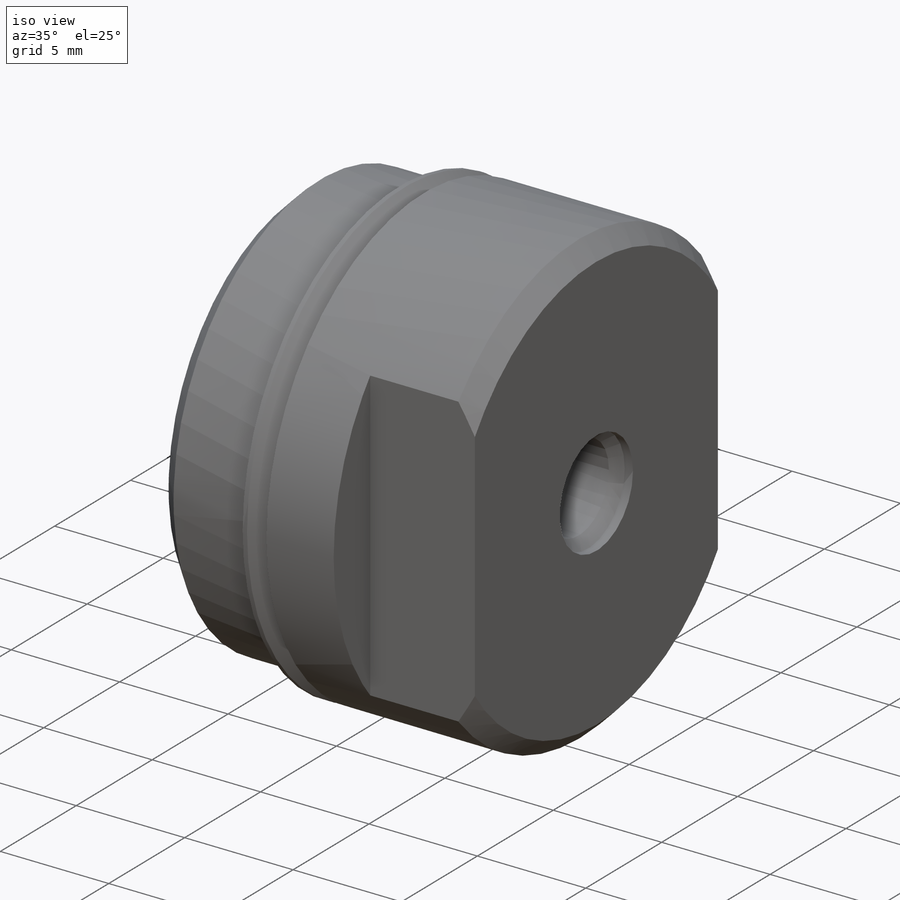
[diagram: iso view]
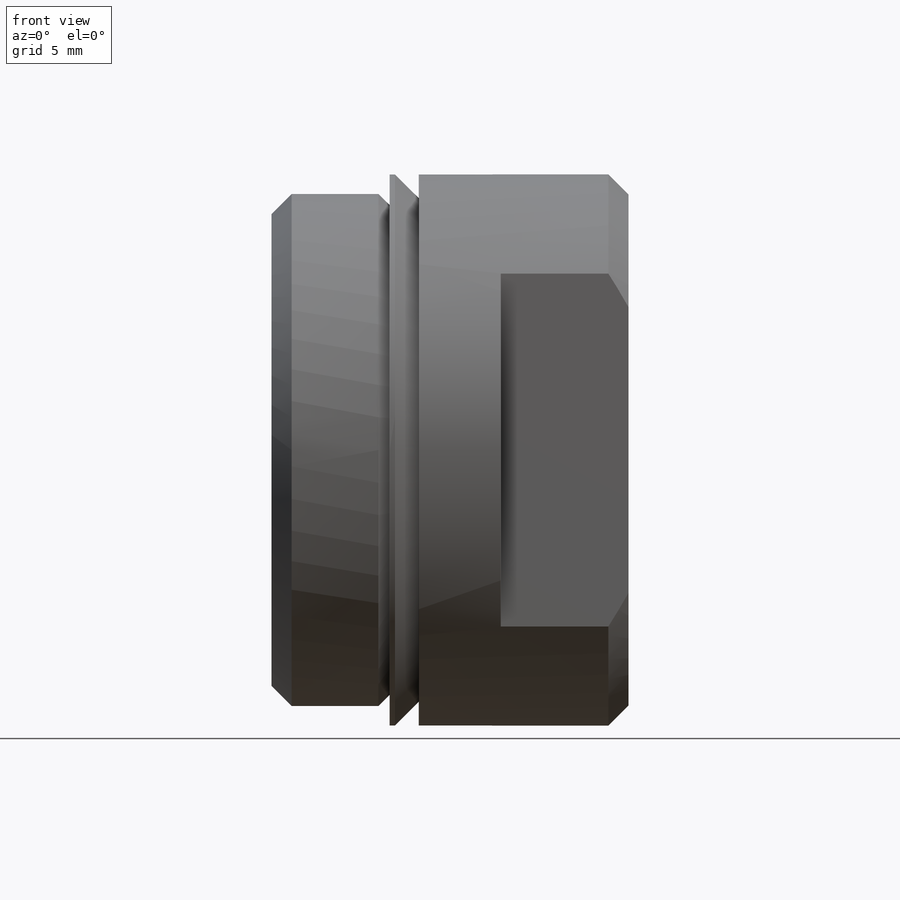
[diagram: front view]
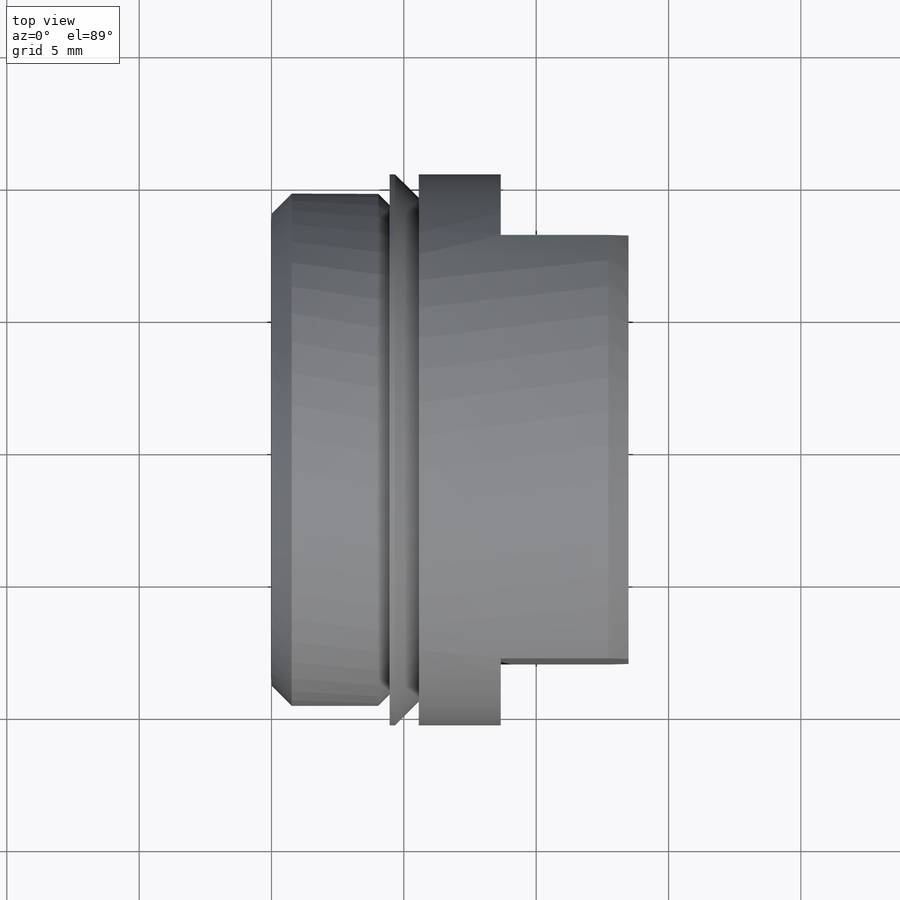
[diagram: top view]
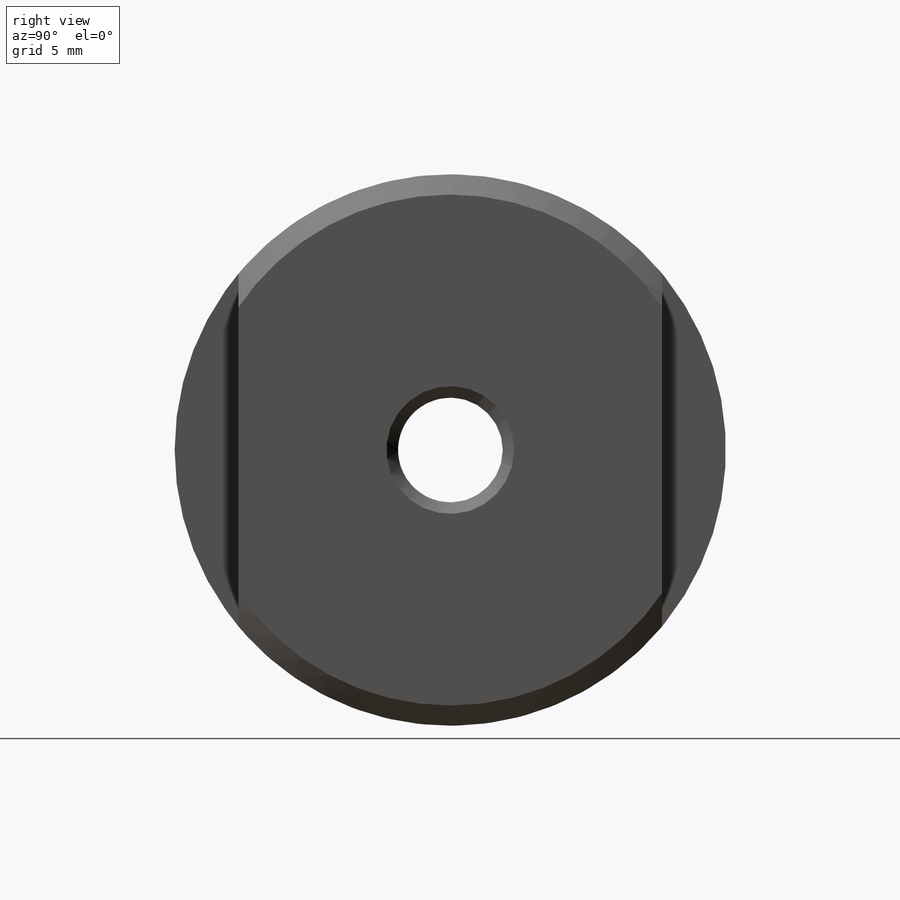
[diagram: right view]
SOLIDWORKS PART (.sldprt)
format: sldprt  version: not decoded by parser v0  size: 401,408 bytes
history: native  units: mm
features: plane x55, sketch x22, revolve x2, hole x2, thread x2, material x1, cut_extrude x1 (+58 scaffold rows collapsed)
feature tree (143):
  scaffold x58  (default folders/planes/origin — collapsed)
  material  "AISI 304"
  sketch  "Sketch1"
  revolve  "Revolve1"  Angle=360deg
  plane  "Plane1"  Offset=13.4874mm
  sketch  "Sketch2"
  cut_extrude  "Cut-Extrude1"  Depth=4.826mm
  hole  "Hole1"  Diameter=12.7mm Depth=6.35mm
  sketch  "Sketch4"
  sketch  "Sketch3"  dims[Diameter=12.7mm Depth=6.35mm C-Sink Angle=90.0deg C-Sink Diameter=13.208mm]
  hole  "Hole2"  Diameter=3.96748mm Depth=13.8684mm
  sketch  "Sketch6"
  sketch  "Sketch5"  dims[Diameter=~3.96748mm Depth=13.8684mm C-Drill Diameter=4.826mm C-Drill Depth=0.381mm C-Drill Angle=90.0deg]
  thread  "Cosmetic Thread1"  Diameter=7.1374mm  [1 undecoded]
  sketch  "Sketch7"
  revolve  "Revolve2"  Angle=360deg
  plane  "Plane2"  Offset=13.4874mm
  plane  "Plane3"  Offset=4.0386mm
  plane  "Plane4"  Offset=0mm
  plane  "Plane5"  Offset=0mm
  plane  "Plane6"  Offset=0mm
  plane  "Plane7"  Offset=0mm
  plane  "Plane8"  Offset=13.4874mm
  plane  "Plane9"  Offset=13.4874mm
  plane  "Plane10"  Offset=13.4874mm
  thread  "Folder1___EndTag___"  [2 undecoded]
  plane  "a1 XY"
  plane  "a1 XZ"
  plane  "a1 YZ"
  sketch  "a1"
  plane  "a2 XY"
  plane  "a2 XZ"
  plane  "a2 YZ"
  sketch  "a2"
  plane  "aa2 XY"
  plane  "aa2 XZ"
  plane  "aa2 YZ"
  sketch  "aa2"
  plane  "g1 XY"
  plane  "g1 XZ"
  plane  "g1 YZ"
  sketch  "g1"
  plane  "g2 XY"
  plane  "g2 XZ"
  plane  "g2 YZ"
  sketch  "g2"
  plane  "k1 XY"
  plane  "k1 XZ"
  plane  "k1 YZ"
  sketch  "k1"
  plane  "k2 XY"
  plane  "k2 XZ"
  plane  "k2 YZ"
  sketch  "k2"
  plane  "l1 XY"
  plane  "l1 XZ"
  plane  "l1 YZ"
  sketch  "l1"
  plane  "rear head XY"
  plane  "rear head XZ"
  plane  "rear head YZ"
  sketch  "rear head"
  plane  "rod XY"
  plane  "rod XZ"
  plane  "rod YZ"
  sketch  "rod"
  plane  "st XY"
  plane  "st XZ"
  plane  "st YZ"
  sketch  "st"
  plane  "st1 XY"
  plane  "st1 XZ"
  plane  "st1 YZ"
  sketch  "st1"
  plane  "to fb r XY"
  plane  "to fb r XZ"
  plane  "to fb r YZ"
  sketch  "to fb r"
  plane  "to pivot bracket XY"
  plane  "to pivot bracket XZ"
  plane  "to pivot bracket YZ"
  sketch  "to pivot bracket"
  plane  "to pivot bracket1 XY"
  plane  "to pivot bracket1 XZ"
  plane  "to pivot bracket1 YZ"
  sketch  "to pivot bracket1"
decode coverage: 8 of 29 modeling features carry decoded parameters
note: ~ marks probable driven/reference dimensions
note: 3 parameter values undecoded
note: suppression state not decoded; provenance and decode notes live in map.json
